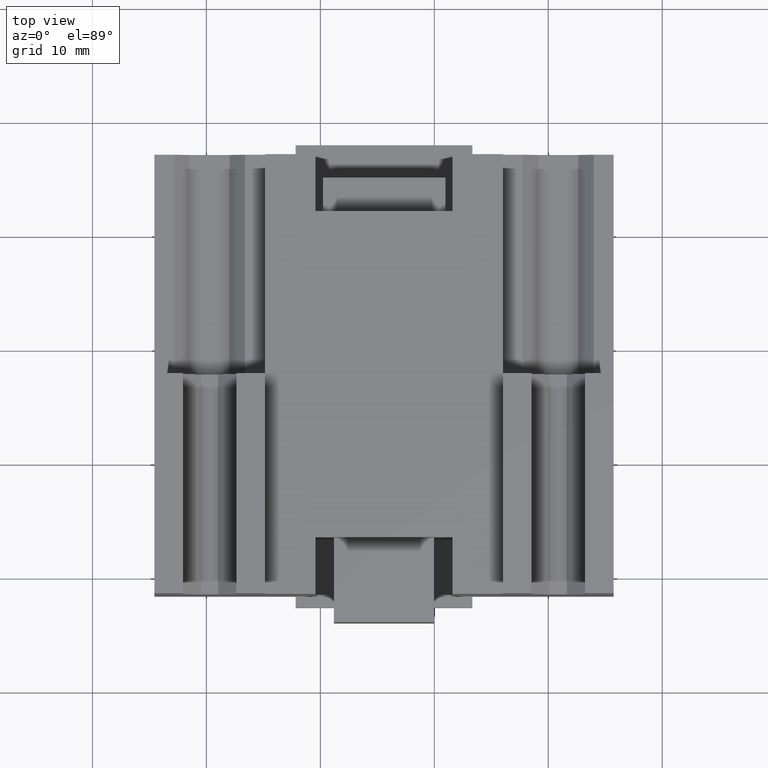
[diagram: clean part render]
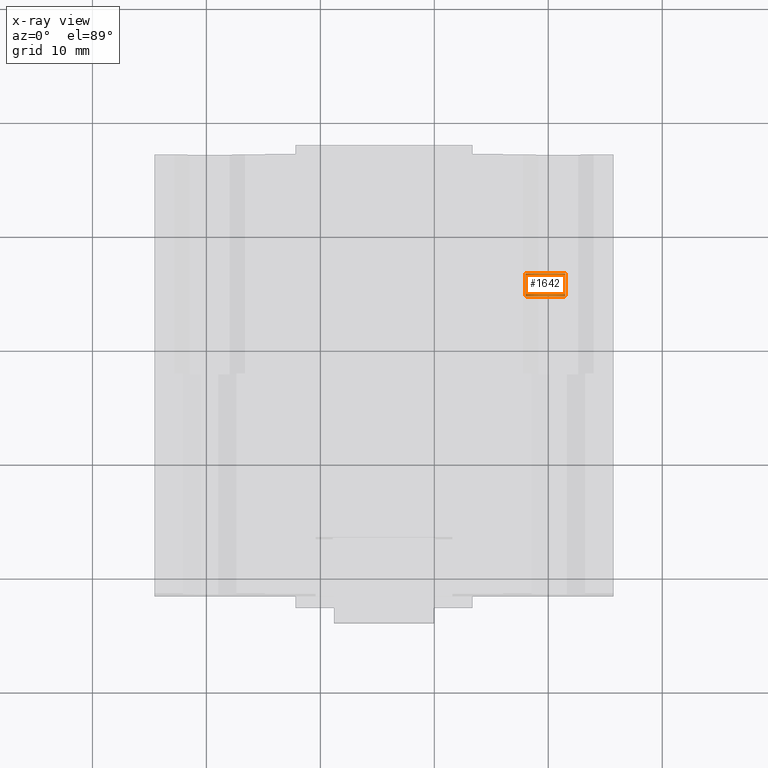
[diagram: x-ray — body ghosted, one internal face saturated and labeled with its STEP entity id]
A machine part, top view, then the same camera in x-ray: the body is ghosted and one INTERNAL B-rep face — a face not visible from any outside direction — is saturated and labeled: STEP entity #1642.
In plain terms, the highlighted face is a freeform B-spline surface patch.
Its self-contained STEP definition (entity closure, byte-faithful):
#1594=CARTESIAN_POINT('',(7.985115196877229,14.728371216523007,-5.250000000000002));
#1595=CARTESIAN_POINT('',(7.985115196877229,16.728371216523009,-5.250000000000002));
#1596=CARTESIAN_POINT('',(7.985115196877230,14.728371216523005,-6.999999999999999));
#1597=CARTESIAN_POINT('',(7.985115196877230,16.728371216523009,-7.000000000000002));
#1598=CARTESIAN_POINT('',(9.735115196877228,14.728371216523005,-7.000000000000001));
#1599=CARTESIAN_POINT('',(9.735115196877230,16.728371216523009,-7.000000000000003));
#1600=CARTESIAN_POINT('',(11.485115196877226,14.728371216523003,-6.999999999999999));
#1601=CARTESIAN_POINT('',(11.485115196877230,16.728371216523009,-7.000000000000002));
#1602=CARTESIAN_POINT('',(11.485115196877228,14.728371216523003,-5.250000000000002));
#1603=CARTESIAN_POINT('',(11.485115196877231,16.728371216523009,-5.250000000000002));
#1604=CARTESIAN_POINT('',(11.485115196877226,14.728371216523003,-3.500000000000003));
#1605=CARTESIAN_POINT('',(11.485115196877230,16.728371216523009,-3.500000000000001));
#1606=CARTESIAN_POINT('',(9.735115196877228,14.728371216523005,-3.500000000000003));
#1607=CARTESIAN_POINT('',(9.735115196877230,16.728371216523009,-3.500000000000001));
#1608=CARTESIAN_POINT('',(7.985115196877230,14.728371216523005,-3.500000000000003));
#1609=CARTESIAN_POINT('',(7.985115196877230,16.728371216523009,-3.500000000000001));
#1610=CARTESIAN_POINT('',(7.985115196877229,14.728371216523007,-5.250000000000002));
#1611=CARTESIAN_POINT('',(7.985115196877229,16.728371216523009,-5.250000000000002));
#1619=(BOUNDED_SURFACE()B_SPLINE_SURFACE(1,2,((#1594,#1596,#1598,#1600,#1602,#1604,#1606,#1608,#1610),(#1595,#1597,#1599,#1601,#1603,#1605,#1607,#1609,#1611)),.UNSPECIFIED.,.F.,.T.,.U.)B_SPLINE_SURFACE_WITH_KNOTS((2,2),(3,2,2,2,3),(-2.285714285714287,-1.142857142857143),(0.0,2.748893571891069,5.497787143782139,8.246680715673207,10.995574287564278),.UNSPECIFIED.)GEOMETRIC_REPRESENTATION_ITEM()RATIONAL_B_SPLINE_SURFACE(((1.0,0.707106781186548,1.0,0.707106781186548,1.0,0.707106781186548,1.0,0.707106781186548,1.0),(1.0,0.707106781186548,1.0,0.707106781186548,1.0,0.707106781186548,1.0,0.707106781186548,1.0)))REPRESENTATION_ITEM('')SURFACE());
#1620=CARTESIAN_POINT('',(7.985115196877228,16.728371216523009,-5.250000000000002));
#1621=VERTEX_POINT('',#1620);
#1622=CARTESIAN_POINT('',(9.735115196877228,16.728371216523009,-5.250000000000002));
#1623=DIRECTION('',(0.0,-1.0,0.0));
#1624=DIRECTION('',(1.0,0.0,0.0));
#1625=AXIS2_PLACEMENT_3D('',#1622,#1623,#1624);
#1626=CIRCLE('',#1625,1.750000000000000);
#1627=EDGE_CURVE('',#1621,#1621,#1626,.T.);
#1628=ORIENTED_EDGE('',*,*,#1627,.F.);
#1629=EDGE_LOOP('',(#1628));
#1630=FACE_OUTER_BOUND('',#1629,.T.);
#1631=CARTESIAN_POINT('',(11.485115196877230,14.728371216523009,-5.250000000000002));
#1632=VERTEX_POINT('',#1631);
#1633=CARTESIAN_POINT('',(9.735115196877228,14.728371216523009,-5.250000000000002));
#1634=DIRECTION('',(0.0,1.0,0.0));
#1635=DIRECTION('',(1.0,0.0,0.0));
#1636=AXIS2_PLACEMENT_3D('',#1633,#1634,#1635);
#1637=CIRCLE('',#1636,1.750000000000000);
#1638=EDGE_CURVE('',#1632,#1632,#1637,.T.);
#1639=ORIENTED_EDGE('',*,*,#1638,.F.);
#1640=EDGE_LOOP('',(#1639));
#1641=FACE_BOUND('',#1640,.T.);
#1642=ADVANCED_FACE('',(#1630,#1641),#1619,.F.);